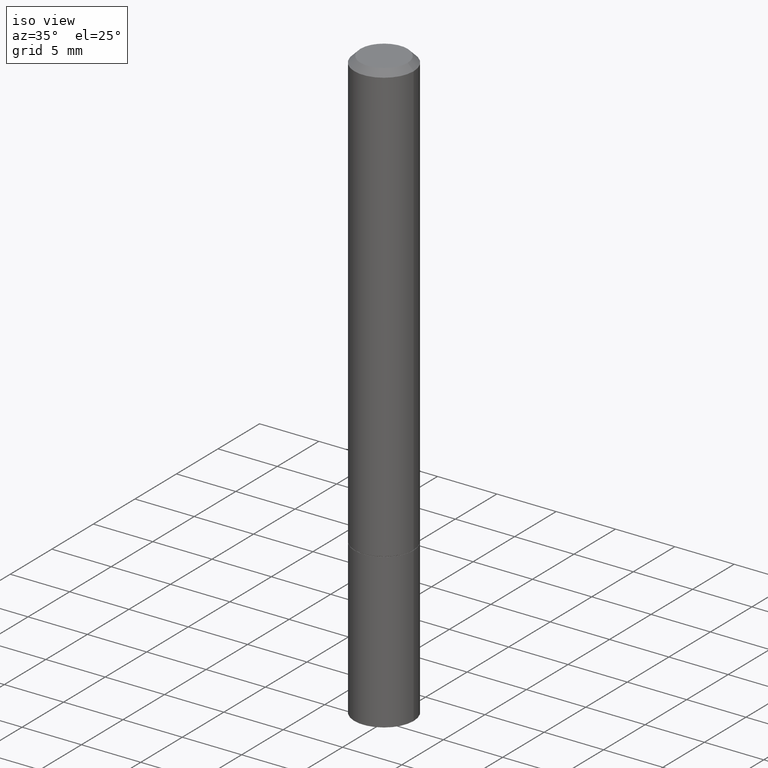
[diagram: clean part render]
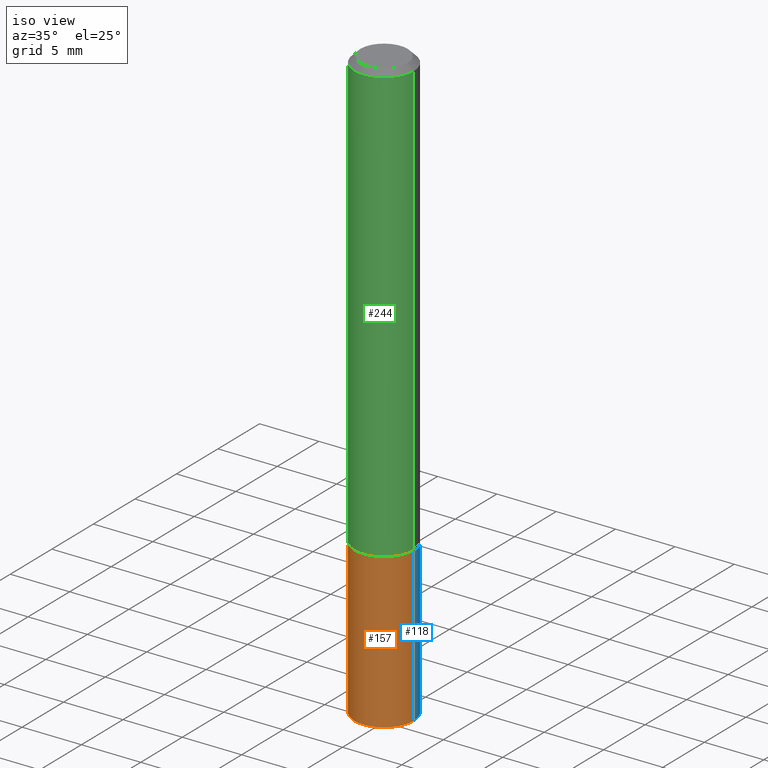
[diagram: same view with three faces highlighted in distinct colors, each labeled with its STEP entity id]
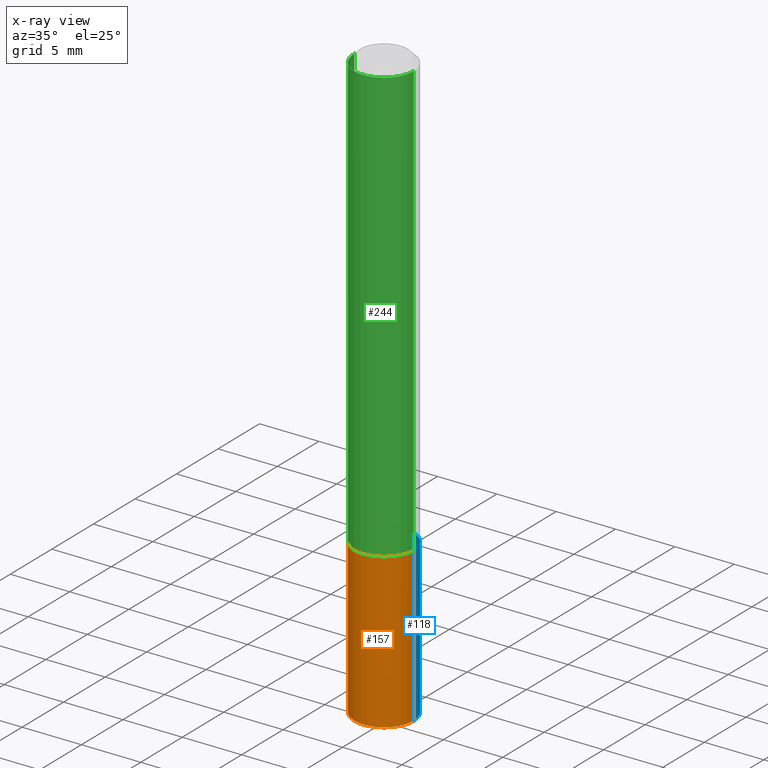
[diagram: x-ray of the same camera — body ghosted, the three highlighted faces saturated]
A machine part, iso view with three faces highlighted in distinct colors.
The next image is the same camera in x-ray (body ghosted, the three faces saturated) — at least one of them is partly hidden behind the body in this view.
Their STEP definitions:

[orange] entity #157 — the highlighted cylindrical surface (edge-blend (fillet) strip) has radius 2.5006 mm, axis along (-0, 0, 1).
#6 = VECTOR ( 'NONE', #123, 39.37007874015748143 ) ;
#19 = ORIENTED_EDGE ( 'NONE', *, *, #57, .T. ) ;
#34 = CARTESIAN_POINT ( 'NONE',  ( -0.09844999999999999585, -5.279981617546952572E-15, -1.968500000000000139 ) ) ;
#45 = VERTEX_POINT ( 'NONE', #137 ) ;
#46 = VERTEX_POINT ( 'NONE', #329 ) ;
#55 = AXIS2_PLACEMENT_3D ( 'NONE', #111, #226, #331 ) ;
#57 = EDGE_CURVE ( 'NONE', #45, #352, #77, .T. ) ;
#64 = ORIENTED_EDGE ( 'NONE', *, *, #223, .T. ) ;
#72 = FACE_OUTER_BOUND ( 'NONE', #258, .T. ) ;
#76 = ORIENTED_EDGE ( 'NONE', *, *, #205, .F. ) ;
#77 = LINE ( 'NONE', #252, #132 ) ;
#78 = CARTESIAN_POINT ( 'NONE',  ( 0.000000000000000000, 0.000000000000000000, 0.000000000000000000 ) ) ;
#87 = CARTESIAN_POINT ( 'NONE',  ( -0.09844999999999999585, 6.995293233558186035E-16, -4.842691596355954042E-30 ) ) ;
#93 = EDGE_CURVE ( 'NONE', #342, #46, #146, .T. ) ;
#94 = AXIS2_PLACEMENT_3D ( 'NONE', #78, #234, #335 ) ;
#105 = CIRCLE ( 'NONE', #55, 0.09844999999999999585 ) ;
#111 = CARTESIAN_POINT ( 'NONE',  ( 4.813905344975441835E-29, -6.872981015512731707E-15, -1.968500000000000139 ) ) ;
#119 = CYLINDRICAL_SURFACE ( 'NONE', #94, 0.09844999999999999585 ) ;
#121 = AXIS2_PLACEMENT_3D ( 'NONE', #256, #315, #253 ) ;
#123 = DIRECTION ( 'NONE',  ( -2.445468806185136877E-29, 3.491481338843145188E-15, 1.000000000000000000 ) ) ;
#125 = CARTESIAN_POINT ( 'NONE',  ( 0.09844999999999999585, -5.773513541911023795E-15, -1.456700000000000106 ) ) ;
#132 = VECTOR ( 'NONE', #195, 39.37007874015748143 ) ;
#137 = CARTESIAN_POINT ( 'NONE',  ( 0.09844999999999999585, -7.560453691130944267E-15, -1.968500000000000139 ) ) ;
#146 = LINE ( 'NONE', #87, #6 ) ;
#157 = ADVANCED_FACE ( 'NONE', ( #72 ), #119, .T. ) ;
#195 = DIRECTION ( 'NONE',  ( -2.445468806185136877E-29, 3.491481338843145188E-15, 1.000000000000000000 ) ) ;
#205 = EDGE_CURVE ( 'NONE', #46, #352, #332, .T. ) ;
#223 = EDGE_CURVE ( 'NONE', #342, #45, #105, .T. ) ;
#226 = DIRECTION ( 'NONE',  ( -2.445468806185136597E-29, 3.491481338843145583E-15, 1.000000000000000000 ) ) ;
#234 = DIRECTION ( 'NONE',  ( -2.445468806185136597E-29, 3.491481338843145583E-15, 1.000000000000000000 ) ) ;
#252 = CARTESIAN_POINT ( 'NONE',  ( 0.09844999999999999585, -6.874726756182129545E-16, 4.800596035771099214E-30 ) ) ;
#253 = DIRECTION ( 'NONE',  ( 1.000000000000000000, -6.982962677686265922E-15, 0.000000000000000000 ) ) ;
#256 = CARTESIAN_POINT ( 'NONE',  ( 3.562314409969888915E-29, -5.086040866292811234E-15, -1.456700000000000106 ) ) ;
#258 = EDGE_LOOP ( 'NONE', ( #311, #64, #19, #76 ) ) ;
#311 = ORIENTED_EDGE ( 'NONE', *, *, #93, .F. ) ;
#315 = DIRECTION ( 'NONE',  ( -2.445468806185136597E-29, 3.491481338843145583E-15, 1.000000000000000000 ) ) ;
#329 = CARTESIAN_POINT ( 'NONE',  ( -0.09844999999999999585, -5.279981617546952572E-15, -1.456700000000000106 ) ) ;
#331 = DIRECTION ( 'NONE',  ( 1.000000000000000000, -6.982962677686265922E-15, 0.000000000000000000 ) ) ;
#332 = CIRCLE ( 'NONE', #121, 0.09844999999999999585 ) ;
#335 = DIRECTION ( 'NONE',  ( 1.000000000000000000, -6.982962677686266711E-15, 4.876176775795936353E-29 ) ) ;
#342 = VERTEX_POINT ( 'NONE', #34 ) ;
#352 = VERTEX_POINT ( 'NONE', #125 ) ;

[blue] entity #118 — the highlighted cylindrical surface (edge-blend (fillet) strip) has radius 2.5006 mm, axis along (-0, 0, 1).
#6 = VECTOR ( 'NONE', #123, 39.37007874015748143 ) ;
#29 = DIRECTION ( 'NONE',  ( -2.445468806185136597E-29, 3.491481338843145583E-15, 1.000000000000000000 ) ) ;
#34 = CARTESIAN_POINT ( 'NONE',  ( -0.09844999999999999585, -5.279981617546952572E-15, -1.968500000000000139 ) ) ;
#45 = VERTEX_POINT ( 'NONE', #137 ) ;
#46 = VERTEX_POINT ( 'NONE', #329 ) ;
#57 = EDGE_CURVE ( 'NONE', #45, #352, #77, .T. ) ;
#77 = LINE ( 'NONE', #252, #132 ) ;
#80 = CIRCLE ( 'NONE', #318, 0.09844999999999999585 ) ;
#85 = EDGE_LOOP ( 'NONE', ( #141, #124, #361, #230 ) ) ;
#87 = CARTESIAN_POINT ( 'NONE',  ( -0.09844999999999999585, 6.995293233558186035E-16, -4.842691596355954042E-30 ) ) ;
#93 = EDGE_CURVE ( 'NONE', #342, #46, #146, .T. ) ;
#118 = ADVANCED_FACE ( 'NONE', ( #334 ), #197, .T. ) ;
#123 = DIRECTION ( 'NONE',  ( -2.445468806185136877E-29, 3.491481338843145188E-15, 1.000000000000000000 ) ) ;
#124 = ORIENTED_EDGE ( 'NONE', *, *, #93, .T. ) ;
#125 = CARTESIAN_POINT ( 'NONE',  ( 0.09844999999999999585, -5.773513541911023795E-15, -1.456700000000000106 ) ) ;
#132 = VECTOR ( 'NONE', #195, 39.37007874015748143 ) ;
#137 = CARTESIAN_POINT ( 'NONE',  ( 0.09844999999999999585, -7.560453691130944267E-15, -1.968500000000000139 ) ) ;
#141 = ORIENTED_EDGE ( 'NONE', *, *, #211, .T. ) ;
#146 = LINE ( 'NONE', #87, #6 ) ;
#156 = CIRCLE ( 'NONE', #227, 0.09844999999999999585 ) ;
#165 = DIRECTION ( 'NONE',  ( 1.000000000000000000, -6.982962677686265922E-15, 0.000000000000000000 ) ) ;
#176 = DIRECTION ( 'NONE',  ( 1.000000000000000000, -6.982962677686265922E-15, 0.000000000000000000 ) ) ;
#195 = DIRECTION ( 'NONE',  ( -2.445468806185136877E-29, 3.491481338843145188E-15, 1.000000000000000000 ) ) ;
#197 = CYLINDRICAL_SURFACE ( 'NONE', #257, 0.09844999999999999585 ) ;
#211 = EDGE_CURVE ( 'NONE', #45, #342, #156, .T. ) ;
#227 = AXIS2_PLACEMENT_3D ( 'NONE', #312, #307, #165 ) ;
#230 = ORIENTED_EDGE ( 'NONE', *, *, #57, .F. ) ;
#231 = DIRECTION ( 'NONE',  ( 1.000000000000000000, -6.982962677686266711E-15, 4.876176775795936353E-29 ) ) ;
#252 = CARTESIAN_POINT ( 'NONE',  ( 0.09844999999999999585, -6.874726756182129545E-16, 4.800596035771099214E-30 ) ) ;
#257 = AXIS2_PLACEMENT_3D ( 'NONE', #285, #29, #231 ) ;
#273 = EDGE_CURVE ( 'NONE', #352, #46, #80, .T. ) ;
#285 = CARTESIAN_POINT ( 'NONE',  ( 0.000000000000000000, 0.000000000000000000, 0.000000000000000000 ) ) ;
#292 = CARTESIAN_POINT ( 'NONE',  ( 3.562314409969888915E-29, -5.086040866292811234E-15, -1.456700000000000106 ) ) ;
#307 = DIRECTION ( 'NONE',  ( -2.445468806185136597E-29, 3.491481338843145583E-15, 1.000000000000000000 ) ) ;
#312 = CARTESIAN_POINT ( 'NONE',  ( 4.813905344975441835E-29, -6.872981015512731707E-15, -1.968500000000000139 ) ) ;
#318 = AXIS2_PLACEMENT_3D ( 'NONE', #292, #340, #176 ) ;
#329 = CARTESIAN_POINT ( 'NONE',  ( -0.09844999999999999585, -5.279981617546952572E-15, -1.456700000000000106 ) ) ;
#334 = FACE_OUTER_BOUND ( 'NONE', #85, .T. ) ;
#340 = DIRECTION ( 'NONE',  ( -2.445468806185136597E-29, 3.491481338843145583E-15, 1.000000000000000000 ) ) ;
#342 = VERTEX_POINT ( 'NONE', #34 ) ;
#352 = VERTEX_POINT ( 'NONE', #125 ) ;
#361 = ORIENTED_EDGE ( 'NONE', *, *, #273, .F. ) ;

[green] entity #244 — the highlighted cylindrical surface (edge-blend (fillet) strip) has radius 2.5006 mm, axis along (-0, 0, 1).
#3 = CARTESIAN_POINT ( 'NONE',  ( -0.09845000000000000973, -1.876660182509593708E-15, -1.455699999999999994 ) ) ;
#4 = LINE ( 'NONE', #189, #74 ) ;
#12 = DIRECTION ( 'NONE',  ( -2.445468806185136877E-29, 3.491481338843145188E-15, 1.000000000000000000 ) ) ;
#27 = VERTEX_POINT ( 'NONE', #251 ) ;
#37 = DIRECTION ( 'NONE',  ( -2.445468806185136877E-29, 3.491481338843145188E-15, 1.000000000000000000 ) ) ;
#39 = CIRCLE ( 'NONE', #106, 0.09844999999999980156 ) ;
#49 = CARTESIAN_POINT ( 'NONE',  ( 0.000000000000000000, 0.000000000000000000, 0.000000000000000000 ) ) ;
#50 = ORIENTED_EDGE ( 'NONE', *, *, #108, .F. ) ;
#66 = CARTESIAN_POINT ( 'NONE',  ( 3.559868941163703312E-29, -5.082549384953967438E-15, -1.455699999999999994 ) ) ;
#68 = ORIENTED_EDGE ( 'NONE', *, *, #254, .T. ) ;
#74 = VECTOR ( 'NONE', #12, 39.37007874015748143 ) ;
#81 = FACE_OUTER_BOUND ( 'NONE', #192, .T. ) ;
#96 = CARTESIAN_POINT ( 'NONE',  ( 0.09845000000000000973, -5.770022060572179999E-15, -1.455699999999999994 ) ) ;
#106 = AXIS2_PLACEMENT_3D ( 'NONE', #286, #317, #365 ) ;
#108 = EDGE_CURVE ( 'NONE', #143, #27, #4, .T. ) ;
#113 = AXIS2_PLACEMENT_3D ( 'NONE', #49, #139, #229 ) ;
#115 = ORIENTED_EDGE ( 'NONE', *, *, #246, .F. ) ;
#139 = DIRECTION ( 'NONE',  ( -2.445468806185136597E-29, 3.491481338843145583E-15, 1.000000000000000000 ) ) ;
#143 = VERTEX_POINT ( 'NONE', #3 ) ;
#178 = VERTEX_POINT ( 'NONE', #354 ) ;
#189 = CARTESIAN_POINT ( 'NONE',  ( -0.09844999999999991258, 6.995293233558180118E-16, -4.842691596355949838E-30 ) ) ;
#192 = EDGE_LOOP ( 'NONE', ( #50, #68, #265, #115 ) ) ;
#198 = CYLINDRICAL_SURFACE ( 'NONE', #113, 0.09844999999999991258 ) ;
#206 = DIRECTION ( 'NONE',  ( -2.445468806185136597E-29, 3.491481338843145583E-15, 1.000000000000000000 ) ) ;
#229 = DIRECTION ( 'NONE',  ( 1.000000000000000000, -6.982962677686266711E-15, 4.876176775795935793E-29 ) ) ;
#237 = LINE ( 'NONE', #259, #250 ) ;
#244 = ADVANCED_FACE ( 'NONE', ( #81 ), #198, .T. ) ;
#246 = EDGE_CURVE ( 'NONE', #27, #178, #39, .T. ) ;
#250 = VECTOR ( 'NONE', #37, 39.37007874015748143 ) ;
#251 = CARTESIAN_POINT ( 'NONE',  ( -0.09844999999999980156, 6.176430488413486702E-16, -0.02000000000000001776 ) ) ;
#254 = EDGE_CURVE ( 'NONE', #143, #356, #308, .T. ) ;
#259 = CARTESIAN_POINT ( 'NONE',  ( 0.09844999999999991258, -6.874726756182123629E-16, 4.800596035771094310E-30 ) ) ;
#263 = EDGE_CURVE ( 'NONE', #356, #178, #237, .T. ) ;
#265 = ORIENTED_EDGE ( 'NONE', *, *, #263, .T. ) ;
#286 = CARTESIAN_POINT ( 'NONE',  ( 4.890937612370276662E-31, -6.982962677686296539E-17, -0.02000000000000001776 ) ) ;
#297 = DIRECTION ( 'NONE',  ( 1.000000000000000000, -6.982962677686265133E-15, 0.000000000000000000 ) ) ;
#301 = AXIS2_PLACEMENT_3D ( 'NONE', #66, #206, #297 ) ;
#308 = CIRCLE ( 'NONE', #301, 0.09845000000000000973 ) ;
#317 = DIRECTION ( 'NONE',  ( -2.445468806185136597E-29, 3.491481338843145583E-15, 1.000000000000000000 ) ) ;
#354 = CARTESIAN_POINT ( 'NONE',  ( 0.09844999999999980156, -7.452456546574689274E-16, -0.02000000000000001776 ) ) ;
#356 = VERTEX_POINT ( 'NONE', #96 ) ;
#365 = DIRECTION ( 'NONE',  ( 1.000000000000000000, -6.982962677686266711E-15, 0.000000000000000000 ) ) ;